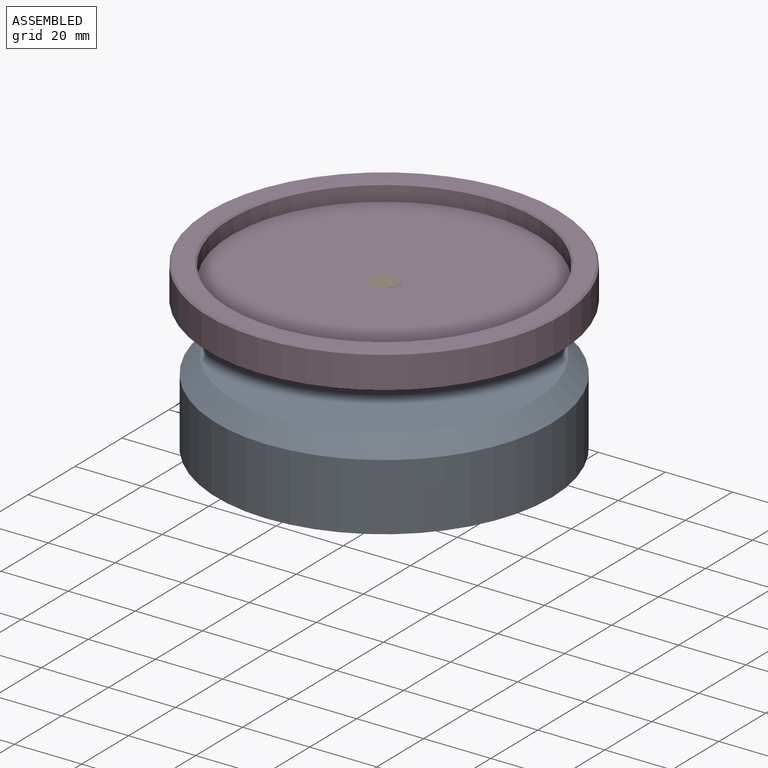
[diagram: assembled view]
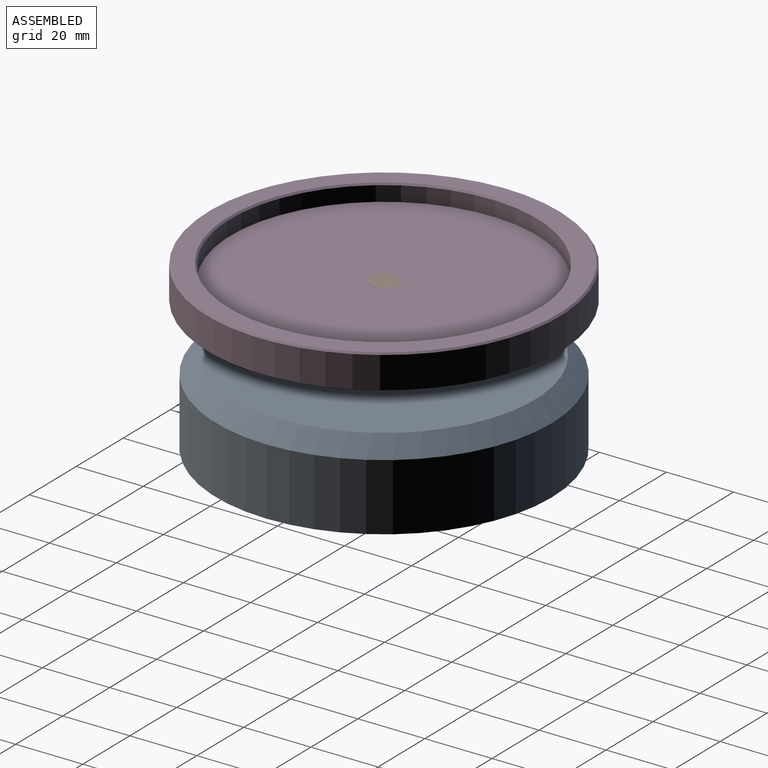
[diagram: assembled view, second angle]
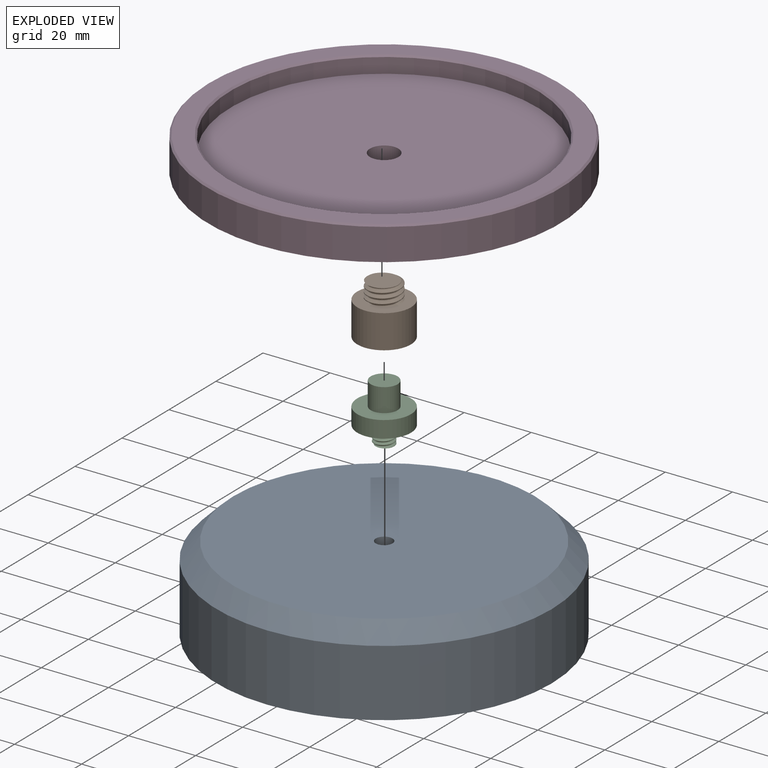
[diagram: exploded view]
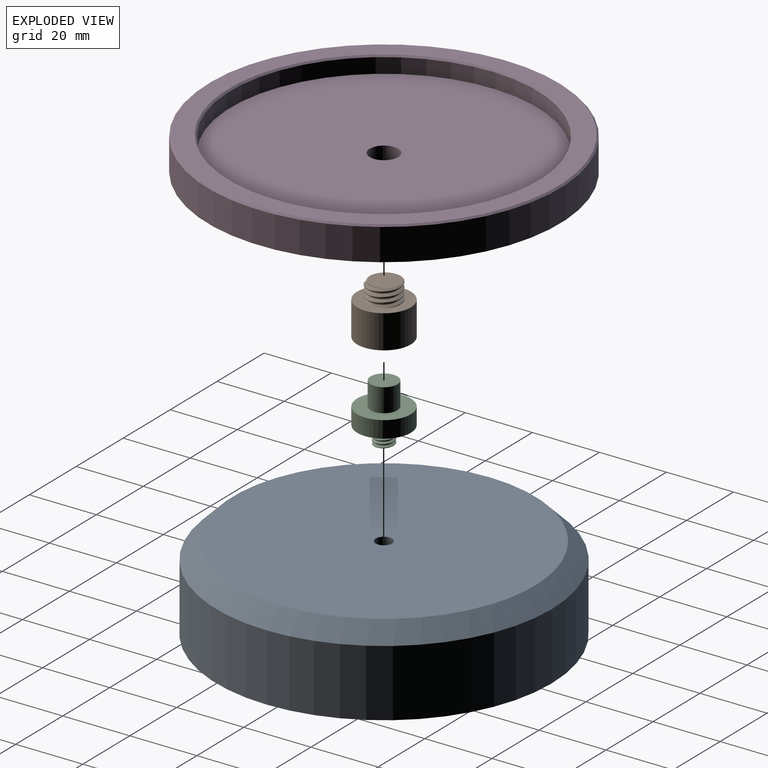
[diagram: exploded view, second angle]
ASSEMBLY  parts=4 mates=3
PART A: 12 faces, bbox 100x100x25 mm
  f0: cone r=0mm half-angle=59deg, axis (0,0,-1), area 22.9mm2, adj f1
  f1: cylinder r=2.5mm len=8mm, axis (0,0,-1), area 125.7mm2, adj f0,f6
  f2: cone r=0mm half-angle=59deg, axis (0,0,-1), area 22.9mm2, adj f3
  f3: cylinder r=2.5mm len=8mm, axis (0,0,-1), area 125.7mm2, adj f2,f6
  f4: cylinder r=50mm len=100mm, axis (0,0,-1), area 6283.2mm2, adj f6,f11
  f5: plane 90x90mm, normal (0,0,1), area 6342.1mm2, adj f8,f11
  f6: plane 100x100mm, normal (0,0,-1), area 7795.1mm2, adj f1,f3,f4,f10
  f7: cone r=0mm half-angle=59deg, axis (0,0,1), area 22.9mm2, adj f8
  f8: cylinder r=2.5mm len=9mm, axis (0,0,1), area 141.4mm2, adj f5,f7
  f9: cone r=0mm half-angle=59deg, axis (0,0,-1), area 22.9mm2, adj f10
  f10: cylinder r=2.5mm len=8mm, axis (0,0,-1), area 125.7mm2, adj f6,f9
  f11: cone r=45mm half-angle=45deg, axis (0,0,-1), area 2110.4mm2, adj f4,f5
PART B: 10 faces, bbox 16.4x16.4x16.1 mm
  f0: cylinder r=5mm len=10mm, axis (0,0,-1), area 19.2mm2, adj f1,f3,f8,f9
  f1: plane 9.49x9.49mm, normal (0,0,1), area 64.8mm2, adj f0,f7,f8,f9
  f2: cylinder r=8mm len=16mm, axis (0,0,-1), area 502.7mm2, adj f3,f4
  f3: plane 16.42x16.42mm, normal (0,0,1), area 136.3mm2, adj f0,f2,f7,f8,f9
  f4: plane 16x16mm, normal (0,0,-1), area 150.8mm2, adj f2,f6
  f5: cone r=0mm half-angle=59deg, axis (0,0,-1), area 58.6mm2, adj f6
  f6: cylinder r=4mm len=9mm, axis (0,0,-1), area 226.2mm2, adj f4,f5
  f7: bspline ~9.67x8.38mm, area 36.4mm2, adj f1,f3,f8,f9
  f8: bspline ~11.55x10mm, area 90.5mm2, adj f0,f1,f3,f7
  f9: bspline ~11.55x10mm, area 90.4mm2, adj f0,f1,f3,f7
PART C: 10 faces, bbox 16.3x16.3x17.7 mm
  f0: cylinder r=3mm len=6mm, axis (0,0,1), area 12mm2, adj f1,f3,f8,f9
  f1: plane 5.69x5.66mm, normal (0,0,-1), area 22.8mm2, adj f0,f7,f8,f9
  f2: cylinder r=8mm len=16mm, axis (0,0,-1), area 251.3mm2, adj f3,f5
  f3: plane 16.28x16.28mm, normal (0,0,-1), area 178.2mm2, adj f0,f2,f7,f8,f9
  f4: cylinder r=4mm len=8mm, axis (0,0,1), area 175.9mm2, adj f5,f6
  f5: plane 16x16mm, normal (0,0,1), area 150.8mm2, adj f2,f4
  f6: plane 8x8mm, normal (0,0,1), area 50.3mm2, adj f4
  f7: bspline ~5.75x5.68mm, area 21.3mm2, adj f1,f3,f8,f9
  f8: bspline ~6.93x6mm, area 53.7mm2, adj f0,f1,f3,f7
  f9: bspline ~6.93x6mm, area 53.7mm2, adj f0,f1,f3,f7
PART D: 8 faces, bbox 105x105x10 mm
  f0: cylinder r=52.5mm len=105mm, axis (0,0,1), area 3133.7mm2, adj f1,f5
  f1: plane 105x105mm, normal (0,0,-1), area 8602.3mm2, adj f0,f6
  f2: plane 104x104mm, normal (0,0,1), area 1774.8mm2, adj f5,f7
  f3: cylinder r=45.75mm len=91.5mm, axis (0,0,1), area 1293.6mm2, adj f4,f7
  f4: plane 91.5x91.5mm, normal (0,0,1), area 6518.8mm2, adj f3,f6
  f5: cone r=52mm half-angle=45deg, axis (0,0,-1), area 232.1mm2, adj f0,f2
  f6: cylinder r=4.25mm len=8.5mm, axis (0,0,1), area 133.5mm2, adj f1,f4
  f7: cone r=45.75mm half-angle=45deg, axis (0,0,1), area 204.4mm2, adj f2,f3
PLACE A t=(0.23,-0.04,-12.75)mm fixed
PLACE B rot(axis=(0,0,-1),142.4deg) t=(0.23,-0.04,17.25)mm
PLACE C t=(0.23,-0.04,12.25)mm
PLACE D rot(axis=(0,0,-1),142.4deg) t=(0.23,-0.04,37.25)mm
MATE fastened C.f0 <-> A.f7  axis (0,0,-1) through (0.23,-0.04,12.25)mm
MATE fastened D.f0 <-> B.f0  axis (0,0,-1) through (0.23,-0.04,27.25)mm
MATE revolute B.f5 <-> C.f2  axis (0,0,-1) through (0.23,-0.04,17.25)mm
